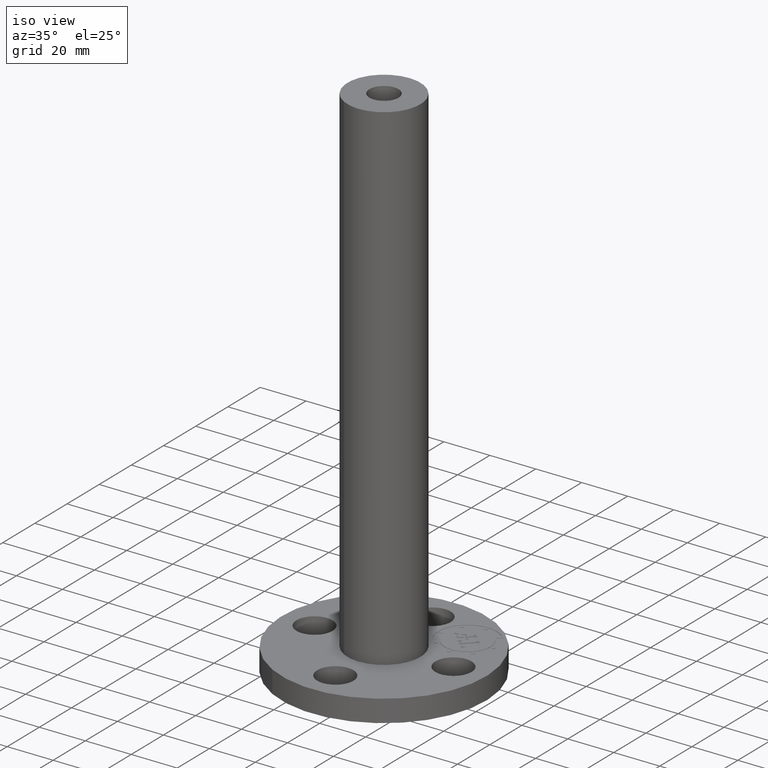
[diagram: clean part render]
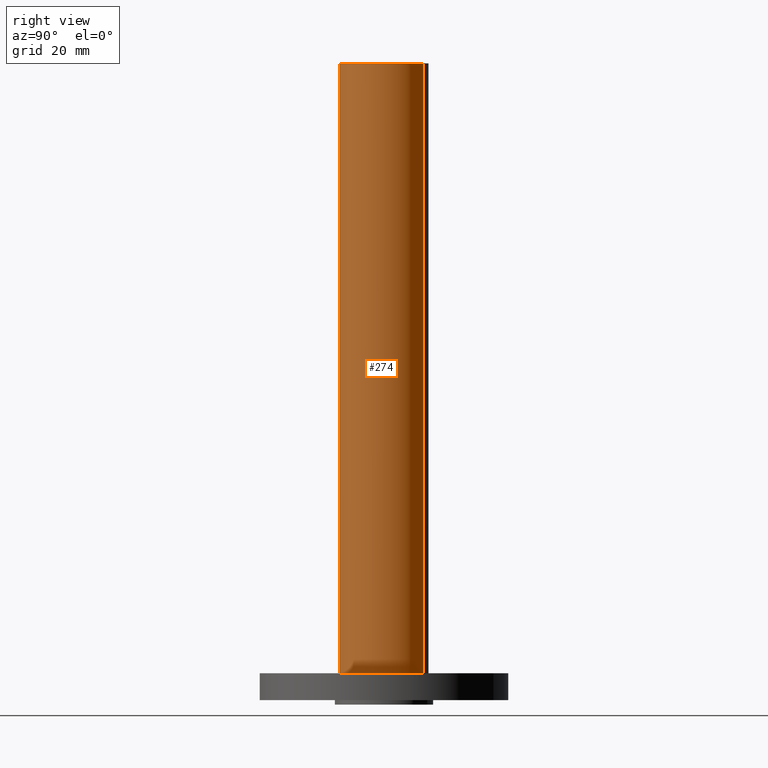
[diagram: tour spotlight — one face highlighted and labeled with its STEP entity id]
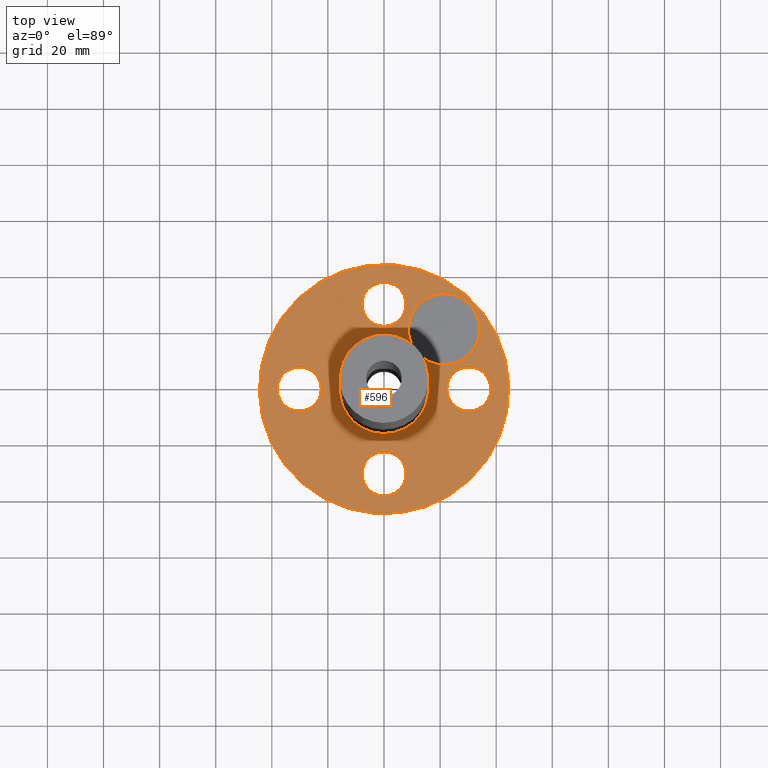
[diagram: tour spotlight — one face highlighted and labeled with its STEP entity id]
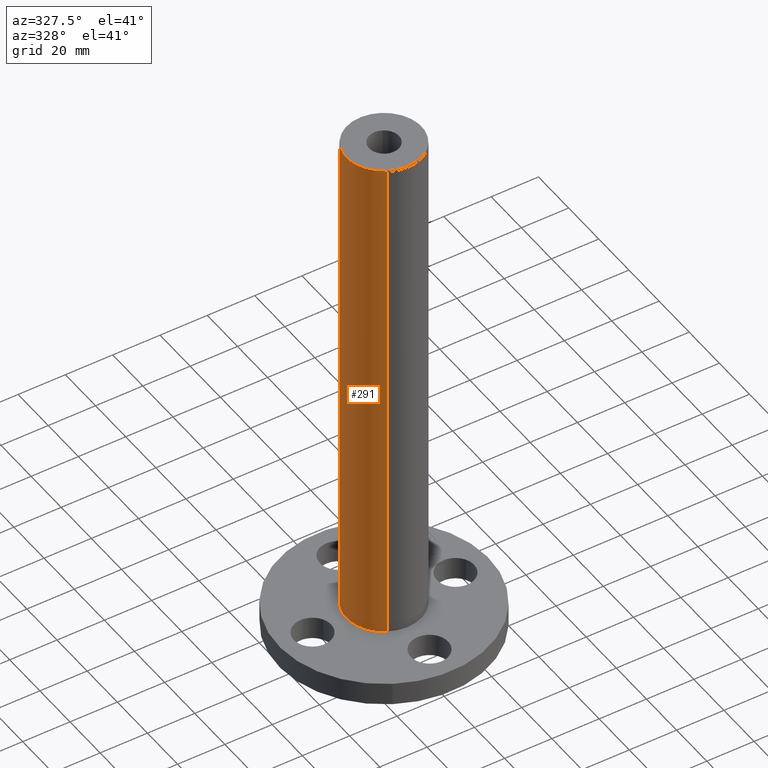
[diagram: tour spotlight — one face highlighted and labeled with its STEP entity id]
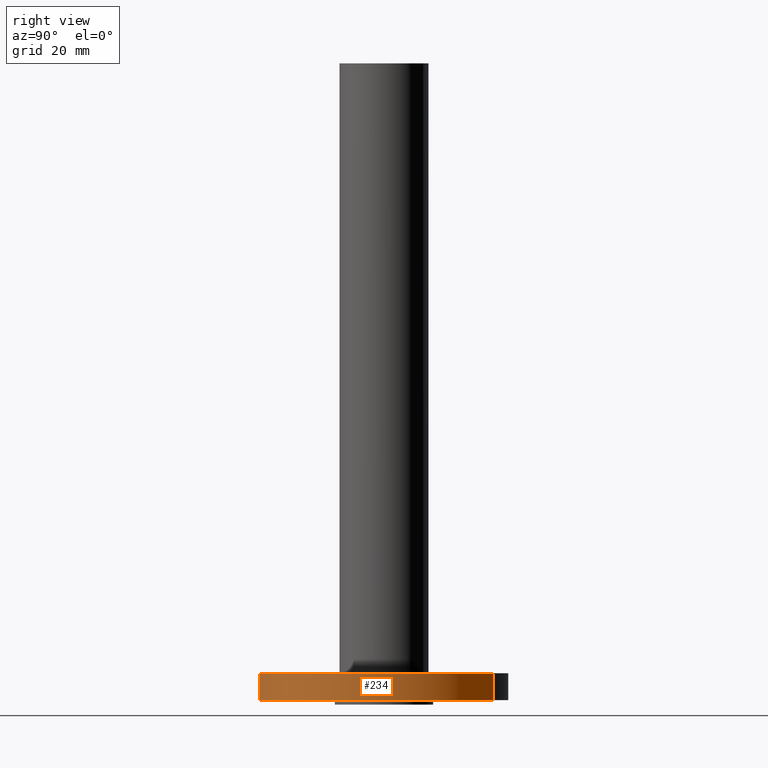
[diagram: tour spotlight — one face highlighted and labeled with its STEP entity id]
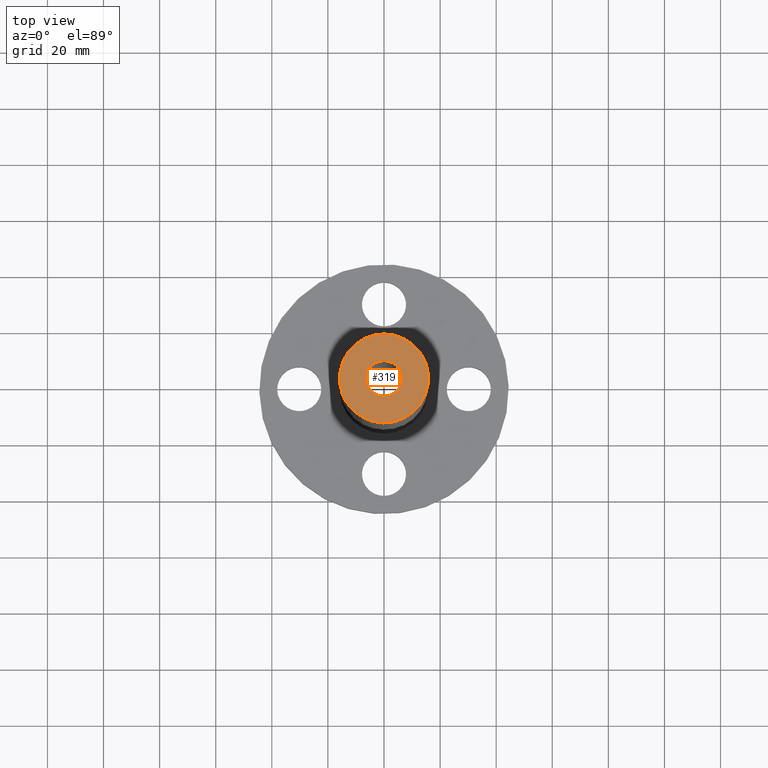
[diagram: tour spotlight — one face highlighted and labeled with its STEP entity id]
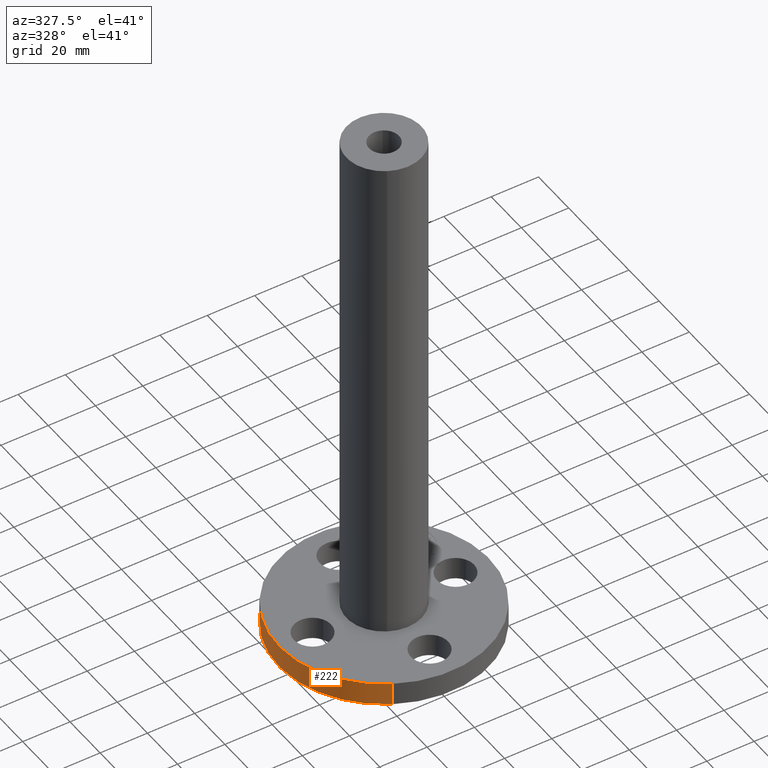
[diagram: tour spotlight — one face highlighted and labeled with its STEP entity id]
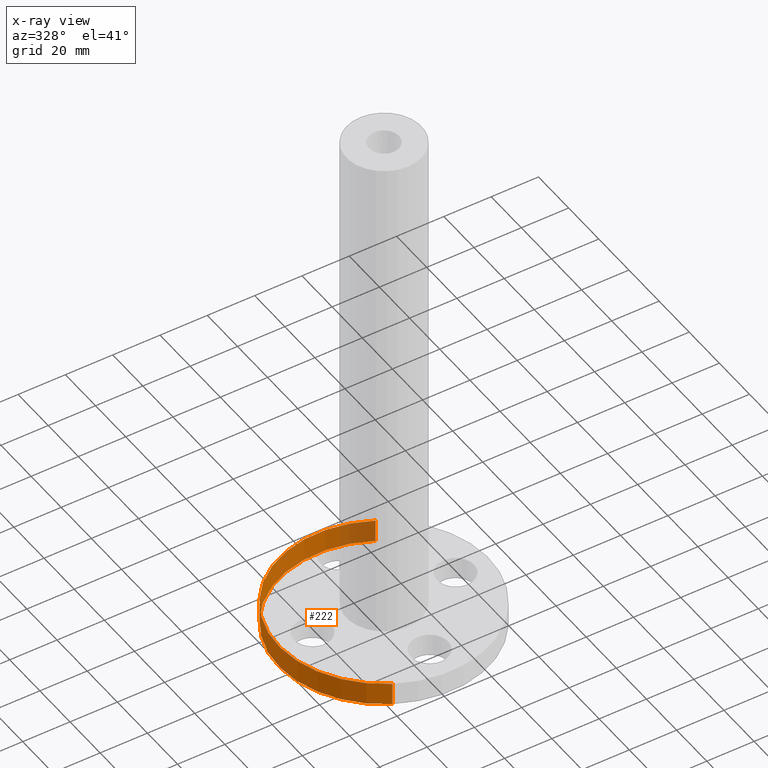
[diagram: x-ray of the same camera — body ghosted, this tour face saturated]
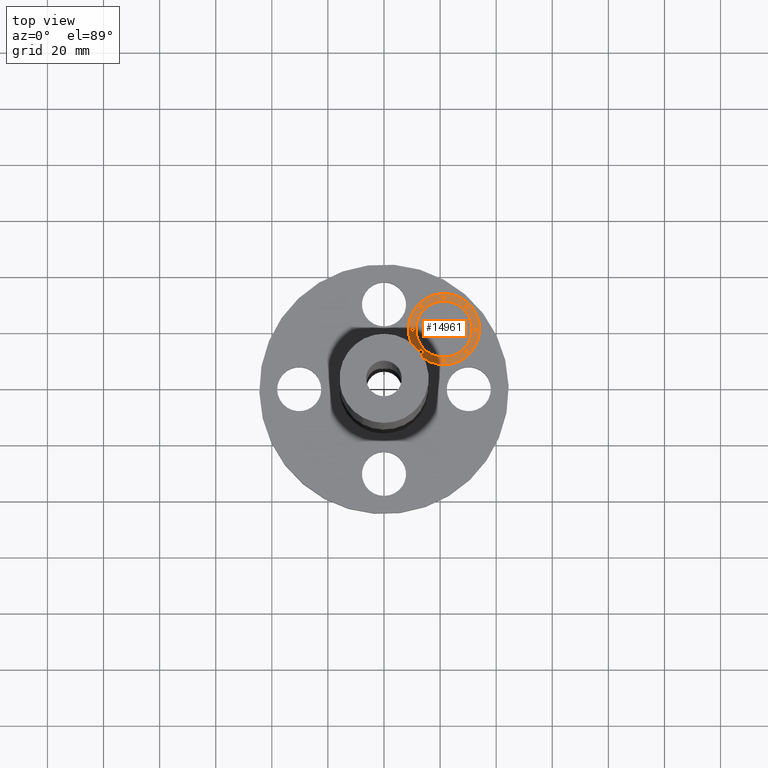
[diagram: tour spotlight — one face highlighted and labeled with its STEP entity id]
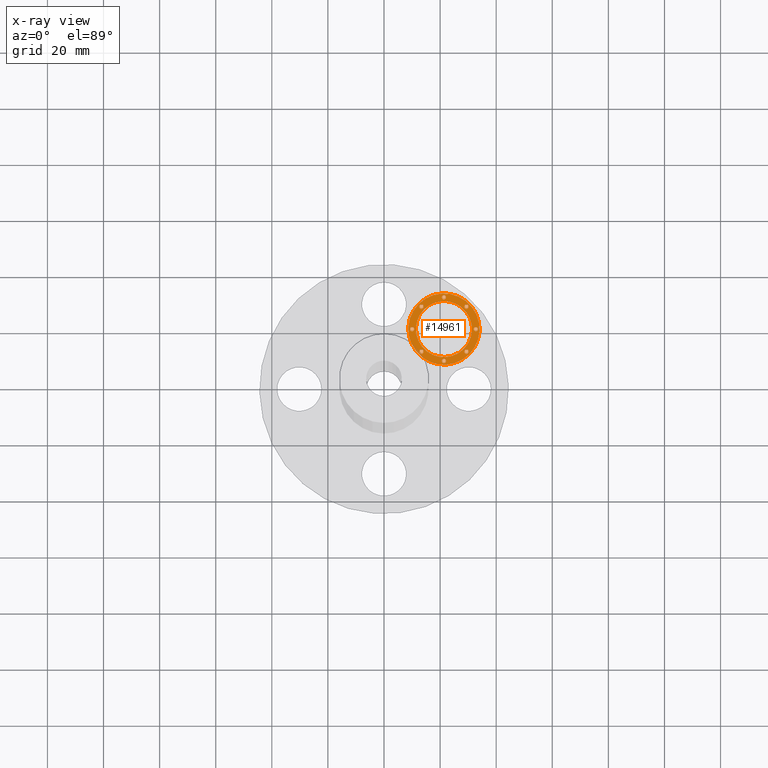
[diagram: x-ray of the same camera — body ghosted, this tour face saturated]
A machine part: a face-by-face anatomy tour. The part has 405 B-rep faces; the first image is the clean iso view, then the 7 largest visible faces are spotlighted one at a time (largest first), each with its STEP entity span.

Face 1 — right view, entity #274. In plain terms, the highlighted cylindrical surface (partial cylindrical patch) has radius 15.875 mm, axis along (0, 0, -1).
Definition (entity closure, byte-faithful):
#238=AXIS2_PLACEMENT_3D('Cylinder Axis2P3D',#235,#236,#237) ;
#242=AXIS2_PLACEMENT_3D('Circle Axis2P3D',#240,#241,$) ;
#258=AXIS2_PLACEMENT_3D('Circle Axis2P3D',#256,#257,$) ;
#235=CARTESIAN_POINT('Axis2P3D Location',(0.,0.,4.43750000002)) ;
#240=CARTESIAN_POINT('Axis2P3D Location',(0.,0.,0.377500000002)) ;
#244=CARTESIAN_POINT('Vertex',(0.299640961629,0.548489101184,0.377500000002)) ;
#246=CARTESIAN_POINT('Vertex',(-0.299640961629,-0.548489101184,0.377500000002)) ;
#249=CARTESIAN_POINT('Line Origine',(0.299640961629,0.548489101184,4.65750000002)) ;
#253=CARTESIAN_POINT('Vertex',(0.299640961629,0.548489101184,8.93750000004)) ;
#256=CARTESIAN_POINT('Axis2P3D Location',(0.,0.,8.93750000004)) ;
#260=CARTESIAN_POINT('Vertex',(-0.299640961629,-0.548489101184,8.93750000004)) ;
#263=CARTESIAN_POINT('Line Origine',(-0.299640961629,-0.548489101184,4.65750000002)) ;
#236=DIRECTION('Axis2P3D Direction',(0.,0.,-0.0393700787402)) ;
#237=DIRECTION('Axis2P3D XDirection',(-0.0188750212049,-0.0345504945626,0.)) ;
#241=DIRECTION('Axis2P3D Direction',(0.,0.,-0.0393700787402)) ;
#250=DIRECTION('Vector Direction',(0.,0.,-0.0393700787402)) ;
#257=DIRECTION('Axis2P3D Direction',(0.,0.,-0.0393700787402)) ;
#264=DIRECTION('Vector Direction',(0.,0.,-0.0393700787402)) ;
#251=VECTOR('Line Direction',#250,0.0393700787402) ;
#265=VECTOR('Line Direction',#264,0.0393700787402) ;
#269=ORIENTED_EDGE('',*,*,#248,.F.) ;
#270=ORIENTED_EDGE('',*,*,#255,.T.) ;
#271=ORIENTED_EDGE('',*,*,#262,.T.) ;
#272=ORIENTED_EDGE('',*,*,#267,.F.) ;
#274=ADVANCED_FACE('PartBody',(#273),#239,.T.) ;
#243=CIRCLE('generated circle',#242,0.625000000003) ;
#259=CIRCLE('generated circle',#258,0.625000000003) ;
#239=CYLINDRICAL_SURFACE('generated cylinder',#238,0.625000000003) ;
#248=EDGE_CURVE('',#245,#247,#243,.T.) ;
#255=EDGE_CURVE('',#245,#254,#252,.F.) ;
#262=EDGE_CURVE('',#254,#261,#259,.T.) ;
#267=EDGE_CURVE('',#247,#261,#266,.F.) ;
#268=EDGE_LOOP('',(#269,#270,#271,#272)) ;
#273=FACE_OUTER_BOUND('',#268,.T.) ;
#252=LINE('Line',#249,#251) ;
#266=LINE('Line',#263,#265) ;
#245=VERTEX_POINT('',#244) ;
#247=VERTEX_POINT('',#246) ;
#254=VERTEX_POINT('',#253) ;
#261=VERTEX_POINT('',#260) ;

Face 2 — top view, entity #596. In plain terms, the highlighted planar face has unit normal (0, 0, -1).
Definition (entity closure, byte-faithful):
#51=AXIS2_PLACEMENT_3D('Circle Axis2P3D',#49,#50,$) ;
#182=AXIS2_PLACEMENT_3D('Circle Axis2P3D',#180,#181,$) ;
#206=AXIS2_PLACEMENT_3D('Circle Axis2P3D',#204,#205,$) ;
#225=AXIS2_PLACEMENT_3D('Circle Axis2P3D',#223,#224,$) ;
#242=AXIS2_PLACEMENT_3D('Circle Axis2P3D',#240,#241,$) ;
#277=AXIS2_PLACEMENT_3D('Circle Axis2P3D',#275,#276,$) ;
#434=AXIS2_PLACEMENT_3D('Circle Axis2P3D',#432,#433,$) ;
#453=AXIS2_PLACEMENT_3D('Circle Axis2P3D',#451,#452,$) ;
#477=AXIS2_PLACEMENT_3D('Circle Axis2P3D',#475,#476,$) ;
#496=AXIS2_PLACEMENT_3D('Circle Axis2P3D',#494,#495,$) ;
#520=AXIS2_PLACEMENT_3D('Circle Axis2P3D',#518,#519,$) ;
#539=AXIS2_PLACEMENT_3D('Circle Axis2P3D',#537,#538,$) ;
#552=AXIS2_PLACEMENT_3D('Plane Axis2P3D',#549,#550,#551) ;
#580=AXIS2_PLACEMENT_3D('Circle Axis2P3D',#578,#579,$) ;
#589=AXIS2_PLACEMENT_3D('Circle Axis2P3D',#587,#588,$) ;
#44=CARTESIAN_POINT('Vertex',(0.917949405818,-0.148621916968,0.377500000002)) ;
#49=CARTESIAN_POINT('Axis2P3D Location',(1.19,0.,0.377500000002)) ;
#53=CARTESIAN_POINT('Vertex',(1.46205059419,0.148621916968,0.377500000002)) ;
#180=CARTESIAN_POINT('Axis2P3D Location',(1.19,0.,0.377500000002)) ;
#201=CARTESIAN_POINT('Vertex',(-0.838994692561,-1.53576948331,0.377500000002)) ;
#204=CARTESIAN_POINT('Axis2P3D Location',(0.,0.,0.377500000002)) ;
#208=CARTESIAN_POINT('Vertex',(0.838994692561,1.53576948331,0.377500000002)) ;
#223=CARTESIAN_POINT('Axis2P3D Location',(0.,0.,0.377500000002)) ;
#240=CARTESIAN_POINT('Axis2P3D Location',(0.,0.,0.377500000002)) ;
#244=CARTESIAN_POINT('Vertex',(0.299640961629,0.548489101184,0.377500000002)) ;
#246=CARTESIAN_POINT('Vertex',(-0.299640961629,-0.548489101184,0.377500000002)) ;
#275=CARTESIAN_POINT('Axis2P3D Location',(0.,0.,0.377500000002)) ;
#429=CARTESIAN_POINT('Vertex',(-0.148621916968,-0.917949405818,0.377500000002)) ;
#432=CARTESIAN_POINT('Axis2P3D Location',(-5.14959780367E-017,-1.19,0.377500000002)) ;
#436=CARTESIAN_POINT('Vertex',(0.148621916968,-1.46205059419,0.377500000002)) ;
#451=CARTESIAN_POINT('Axis2P3D Location',(-5.14959780367E-017,-1.19,0.377500000002)) ;
#472=CARTESIAN_POINT('Vertex',(-0.917949405818,0.148621916968,0.377500000002)) ;
#475=CARTESIAN_POINT('Axis2P3D Location',(-1.19,3.82733190625E-016,0.377500000002)) ;
#479=CARTESIAN_POINT('Vertex',(-1.46205059419,-0.148621916968,0.377500000002)) ;
#494=CARTESIAN_POINT('Axis2P3D Location',(-1.19,3.82733190625E-016,0.377500000002)) ;
#515=CARTESIAN_POINT('Vertex',(0.148621916968,0.917949405818,0.377500000002)) ;
#518=CARTESIAN_POINT('Axis2P3D Location',(8.38332865799E-016,1.19,0.377500000002)) ;
#522=CARTESIAN_POINT('Vertex',(-0.148621916968,1.46205059419,0.377500000002)) ;
#537=CARTESIAN_POINT('Axis2P3D Location',(8.38332865799E-016,1.19,0.377500000002)) ;
#549=CARTESIAN_POINT('Axis2P3D Location',(0.,1.75000000001,0.377500000002)) ;
#578=CARTESIAN_POINT('Axis2P3D Location',(0.841457069615,0.841457069615,0.377500000002)) ;
#582=CARTESIAN_POINT('Vertex',(1.19501045667,0.487903682556,0.377500000002)) ;
#584=CARTESIAN_POINT('Vertex',(0.487903682556,1.19501045667,0.377500000002)) ;
#587=CARTESIAN_POINT('Axis2P3D Location',(0.841457069615,0.841457069615,0.377500000002)) ;
#50=DIRECTION('Axis2P3D Direction',(0.,-0.,0.0393700787402)) ;
#181=DIRECTION('Axis2P3D Direction',(0.,-0.,0.0393700787402)) ;
#205=DIRECTION('Axis2P3D Direction',(0.,0.,-0.0393700787402)) ;
#224=DIRECTION('Axis2P3D Direction',(0.,0.,-0.0393700787402)) ;
#241=DIRECTION('Axis2P3D Direction',(0.,0.,-0.0393700787402)) ;
#276=DIRECTION('Axis2P3D Direction',(0.,0.,-0.0393700787402)) ;
#433=DIRECTION('Axis2P3D Direction',(0.,0.,0.0393700787402)) ;
#452=DIRECTION('Axis2P3D Direction',(0.,0.,0.0393700787402)) ;
#476=DIRECTION('Axis2P3D Direction',(0.,0.,0.0393700787402)) ;
#495=DIRECTION('Axis2P3D Direction',(0.,0.,0.0393700787402)) ;
#519=DIRECTION('Axis2P3D Direction',(0.,-0.,0.0393700787402)) ;
#538=DIRECTION('Axis2P3D Direction',(0.,-0.,0.0393700787402)) ;
#550=DIRECTION('Axis2P3D Direction',(0.,0.,-0.0393700787402)) ;
#551=DIRECTION('Axis2P3D XDirection',(0.0393700787402,0.,0.)) ;
#579=DIRECTION('Axis2P3D Direction',(0.,0.,-0.0393700787402)) ;
#588=DIRECTION('Axis2P3D Direction',(0.,0.,-0.0393700787402)) ;
#555=ORIENTED_EDGE('',*,*,#227,.F.) ;
#556=ORIENTED_EDGE('',*,*,#210,.F.) ;
#559=ORIENTED_EDGE('',*,*,#55,.T.) ;
#560=ORIENTED_EDGE('',*,*,#184,.T.) ;
#563=ORIENTED_EDGE('',*,*,#279,.T.) ;
#564=ORIENTED_EDGE('',*,*,#248,.T.) ;
#567=ORIENTED_EDGE('',*,*,#455,.T.) ;
#568=ORIENTED_EDGE('',*,*,#438,.T.) ;
#571=ORIENTED_EDGE('',*,*,#498,.T.) ;
#572=ORIENTED_EDGE('',*,*,#481,.T.) ;
#575=ORIENTED_EDGE('',*,*,#541,.T.) ;
#576=ORIENTED_EDGE('',*,*,#524,.T.) ;
#593=ORIENTED_EDGE('',*,*,#586,.F.) ;
#594=ORIENTED_EDGE('',*,*,#591,.F.) ;
#561=FACE_BOUND('',#558,.T.) ;
#565=FACE_BOUND('',#562,.T.) ;
#569=FACE_BOUND('',#566,.T.) ;
#573=FACE_BOUND('',#570,.T.) ;
#577=FACE_BOUND('',#574,.T.) ;
#595=FACE_BOUND('',#592,.T.) ;
#596=ADVANCED_FACE('PartBody',(#557,#561,#565,#569,#573,#577,#595),#553,.F.) ;
#52=CIRCLE('generated circle',#51,0.310000000001) ;
#183=CIRCLE('generated circle',#182,0.310000000001) ;
#207=CIRCLE('generated circle',#206,1.75000000001) ;
#226=CIRCLE('generated circle',#225,1.75000000001) ;
#243=CIRCLE('generated circle',#242,0.625000000003) ;
#278=CIRCLE('generated circle',#277,0.625000000003) ;
#435=CIRCLE('generated circle',#434,0.310000000001) ;
#454=CIRCLE('generated circle',#453,0.310000000001) ;
#478=CIRCLE('generated circle',#477,0.310000000001) ;
#497=CIRCLE('generated circle',#496,0.310000000001) ;
#521=CIRCLE('generated circle',#520,0.310000000001) ;
#540=CIRCLE('generated circle',#539,0.310000000001) ;
#581=CIRCLE('generated circle',#580,0.499999995002) ;
#590=CIRCLE('generated circle',#589,0.499999995002) ;
#55=EDGE_CURVE('',#54,#45,#52,.F.) ;
#184=EDGE_CURVE('',#45,#54,#183,.F.) ;
#210=EDGE_CURVE('',#202,#209,#207,.T.) ;
#227=EDGE_CURVE('',#209,#202,#226,.T.) ;
#248=EDGE_CURVE('',#245,#247,#243,.T.) ;
#279=EDGE_CURVE('',#247,#245,#278,.T.) ;
#438=EDGE_CURVE('',#437,#430,#435,.F.) ;
#455=EDGE_CURVE('',#430,#437,#454,.F.) ;
#481=EDGE_CURVE('',#480,#473,#478,.F.) ;
#498=EDGE_CURVE('',#473,#480,#497,.F.) ;
#524=EDGE_CURVE('',#523,#516,#521,.F.) ;
#541=EDGE_CURVE('',#516,#523,#540,.F.) ;
#586=EDGE_CURVE('',#583,#585,#581,.F.) ;
#591=EDGE_CURVE('',#585,#583,#590,.F.) ;
#554=EDGE_LOOP('',(#555,#556)) ;
#558=EDGE_LOOP('',(#559,#560)) ;
#562=EDGE_LOOP('',(#563,#564)) ;
#566=EDGE_LOOP('',(#567,#568)) ;
#570=EDGE_LOOP('',(#571,#572)) ;
#574=EDGE_LOOP('',(#575,#576)) ;
#592=EDGE_LOOP('',(#593,#594)) ;
#557=FACE_OUTER_BOUND('',#554,.T.) ;
#553=PLANE('',#552) ;
#45=VERTEX_POINT('',#44) ;
#54=VERTEX_POINT('',#53) ;
#202=VERTEX_POINT('',#201) ;
#209=VERTEX_POINT('',#208) ;
#245=VERTEX_POINT('',#244) ;
#247=VERTEX_POINT('',#246) ;
#430=VERTEX_POINT('',#429) ;
#437=VERTEX_POINT('',#436) ;
#473=VERTEX_POINT('',#472) ;
#480=VERTEX_POINT('',#479) ;
#516=VERTEX_POINT('',#515) ;
#523=VERTEX_POINT('',#522) ;
#583=VERTEX_POINT('',#582) ;
#585=VERTEX_POINT('',#584) ;

Face 3 — auxiliary view, entity #291. In plain terms, the highlighted cylindrical surface (partial cylindrical patch) has radius 15.875 mm, axis along (0, 0, -1).
Definition (entity closure, byte-faithful):
#238=AXIS2_PLACEMENT_3D('Cylinder Axis2P3D',#235,#236,#237) ;
#277=AXIS2_PLACEMENT_3D('Circle Axis2P3D',#275,#276,$) ;
#282=AXIS2_PLACEMENT_3D('Circle Axis2P3D',#280,#281,$) ;
#235=CARTESIAN_POINT('Axis2P3D Location',(0.,0.,4.43750000002)) ;
#244=CARTESIAN_POINT('Vertex',(0.299640961629,0.548489101184,0.377500000002)) ;
#246=CARTESIAN_POINT('Vertex',(-0.299640961629,-0.548489101184,0.377500000002)) ;
#249=CARTESIAN_POINT('Line Origine',(0.299640961629,0.548489101184,4.65750000002)) ;
#253=CARTESIAN_POINT('Vertex',(0.299640961629,0.548489101184,8.93750000004)) ;
#260=CARTESIAN_POINT('Vertex',(-0.299640961629,-0.548489101184,8.93750000004)) ;
#263=CARTESIAN_POINT('Line Origine',(-0.299640961629,-0.548489101184,4.65750000002)) ;
#275=CARTESIAN_POINT('Axis2P3D Location',(0.,0.,0.377500000002)) ;
#280=CARTESIAN_POINT('Axis2P3D Location',(0.,0.,8.93750000004)) ;
#236=DIRECTION('Axis2P3D Direction',(0.,0.,-0.0393700787402)) ;
#237=DIRECTION('Axis2P3D XDirection',(-0.0188750212049,-0.0345504945626,0.)) ;
#250=DIRECTION('Vector Direction',(0.,0.,-0.0393700787402)) ;
#264=DIRECTION('Vector Direction',(0.,0.,-0.0393700787402)) ;
#276=DIRECTION('Axis2P3D Direction',(0.,0.,-0.0393700787402)) ;
#281=DIRECTION('Axis2P3D Direction',(0.,0.,-0.0393700787402)) ;
#251=VECTOR('Line Direction',#250,0.0393700787402) ;
#265=VECTOR('Line Direction',#264,0.0393700787402) ;
#286=ORIENTED_EDGE('',*,*,#279,.F.) ;
#287=ORIENTED_EDGE('',*,*,#267,.T.) ;
#288=ORIENTED_EDGE('',*,*,#284,.T.) ;
#289=ORIENTED_EDGE('',*,*,#255,.F.) ;
#291=ADVANCED_FACE('PartBody',(#290),#239,.T.) ;
#278=CIRCLE('generated circle',#277,0.625000000003) ;
#283=CIRCLE('generated circle',#282,0.625000000003) ;
#239=CYLINDRICAL_SURFACE('generated cylinder',#238,0.625000000003) ;
#255=EDGE_CURVE('',#245,#254,#252,.F.) ;
#267=EDGE_CURVE('',#247,#261,#266,.F.) ;
#279=EDGE_CURVE('',#247,#245,#278,.T.) ;
#284=EDGE_CURVE('',#261,#254,#283,.T.) ;
#285=EDGE_LOOP('',(#286,#287,#288,#289)) ;
#290=FACE_OUTER_BOUND('',#285,.T.) ;
#252=LINE('Line',#249,#251) ;
#266=LINE('Line',#263,#265) ;
#245=VERTEX_POINT('',#244) ;
#247=VERTEX_POINT('',#246) ;
#254=VERTEX_POINT('',#253) ;
#261=VERTEX_POINT('',#260) ;

Face 4 — right view, entity #234. In plain terms, the highlighted cylindrical surface (partial cylindrical patch) has radius 44.45 mm, axis along (0, 0, -1).
Definition (entity closure, byte-faithful):
#91=AXIS2_PLACEMENT_3D('Circle Axis2P3D',#89,#90,$) ;
#195=AXIS2_PLACEMENT_3D('Cylinder Axis2P3D',#192,#193,#194) ;
#225=AXIS2_PLACEMENT_3D('Circle Axis2P3D',#223,#224,$) ;
#84=CARTESIAN_POINT('Vertex',(-0.838994692561,-1.53576948331,0.)) ;
#86=CARTESIAN_POINT('Vertex',(0.838994692561,1.53576948331,0.)) ;
#89=CARTESIAN_POINT('Axis2P3D Location',(0.,0.,0.)) ;
#192=CARTESIAN_POINT('Axis2P3D Location',(0.,0.,4.43750000002)) ;
#197=CARTESIAN_POINT('Line Origine',(-0.838994692561,-1.53576948331,0.188750000001)) ;
#201=CARTESIAN_POINT('Vertex',(-0.838994692561,-1.53576948331,0.377500000002)) ;
#208=CARTESIAN_POINT('Vertex',(0.838994692561,1.53576948331,0.377500000002)) ;
#211=CARTESIAN_POINT('Line Origine',(0.838994692561,1.53576948331,0.188750000001)) ;
#223=CARTESIAN_POINT('Axis2P3D Location',(0.,0.,0.377500000002)) ;
#90=DIRECTION('Axis2P3D Direction',(0.,0.,-0.0393700787402)) ;
#193=DIRECTION('Axis2P3D Direction',(0.,0.,-0.0393700787402)) ;
#194=DIRECTION('Axis2P3D XDirection',(0.0188750212049,0.0345504945626,0.)) ;
#198=DIRECTION('Vector Direction',(0.,0.,-0.0393700787402)) ;
#212=DIRECTION('Vector Direction',(0.,0.,-0.0393700787402)) ;
#224=DIRECTION('Axis2P3D Direction',(0.,0.,-0.0393700787402)) ;
#199=VECTOR('Line Direction',#198,0.0393700787402) ;
#213=VECTOR('Line Direction',#212,0.0393700787402) ;
#229=ORIENTED_EDGE('',*,*,#93,.F.) ;
#230=ORIENTED_EDGE('',*,*,#215,.T.) ;
#231=ORIENTED_EDGE('',*,*,#227,.T.) ;
#232=ORIENTED_EDGE('',*,*,#203,.F.) ;
#234=ADVANCED_FACE('PartBody',(#233),#196,.T.) ;
#92=CIRCLE('generated circle',#91,1.75000000001) ;
#226=CIRCLE('generated circle',#225,1.75000000001) ;
#196=CYLINDRICAL_SURFACE('generated cylinder',#195,1.75000000001) ;
#93=EDGE_CURVE('',#87,#85,#92,.T.) ;
#203=EDGE_CURVE('',#85,#202,#200,.F.) ;
#215=EDGE_CURVE('',#87,#209,#214,.F.) ;
#227=EDGE_CURVE('',#209,#202,#226,.T.) ;
#228=EDGE_LOOP('',(#229,#230,#231,#232)) ;
#233=FACE_OUTER_BOUND('',#228,.T.) ;
#200=LINE('Line',#197,#199) ;
#214=LINE('Line',#211,#213) ;
#85=VERTEX_POINT('',#84) ;
#87=VERTEX_POINT('',#86) ;
#202=VERTEX_POINT('',#201) ;
#209=VERTEX_POINT('',#208) ;

Face 5 — top view, entity #319. In plain terms, the highlighted planar face has unit normal (0, 0, -1).
Definition (entity closure, byte-faithful):
#258=AXIS2_PLACEMENT_3D('Circle Axis2P3D',#256,#257,$) ;
#282=AXIS2_PLACEMENT_3D('Circle Axis2P3D',#280,#281,$) ;
#295=AXIS2_PLACEMENT_3D('Plane Axis2P3D',#292,#293,#294) ;
#303=AXIS2_PLACEMENT_3D('Circle Axis2P3D',#301,#302,$) ;
#312=AXIS2_PLACEMENT_3D('Circle Axis2P3D',#310,#311,$) ;
#253=CARTESIAN_POINT('Vertex',(0.299640961629,0.548489101184,8.93750000004)) ;
#256=CARTESIAN_POINT('Axis2P3D Location',(0.,0.,8.93750000004)) ;
#260=CARTESIAN_POINT('Vertex',(-0.299640961629,-0.548489101184,8.93750000004)) ;
#280=CARTESIAN_POINT('Axis2P3D Location',(0.,0.,8.93750000004)) ;
#292=CARTESIAN_POINT('Axis2P3D Location',(0.,0.625000000003,8.93750000004)) ;
#301=CARTESIAN_POINT('Axis2P3D Location',(0.,0.,8.93750000004)) ;
#305=CARTESIAN_POINT('Vertex',(-0.119856384652,-0.219395640473,8.93750000004)) ;
#307=CARTESIAN_POINT('Vertex',(0.119856384652,0.219395640473,8.93750000004)) ;
#310=CARTESIAN_POINT('Axis2P3D Location',(0.,0.,8.93750000004)) ;
#257=DIRECTION('Axis2P3D Direction',(0.,0.,-0.0393700787402)) ;
#281=DIRECTION('Axis2P3D Direction',(0.,0.,-0.0393700787402)) ;
#293=DIRECTION('Axis2P3D Direction',(0.,0.,-0.0393700787402)) ;
#294=DIRECTION('Axis2P3D XDirection',(0.0393700787402,0.,0.)) ;
#302=DIRECTION('Axis2P3D Direction',(0.,0.,-0.0393700787402)) ;
#311=DIRECTION('Axis2P3D Direction',(0.,0.,-0.0393700787402)) ;
#298=ORIENTED_EDGE('',*,*,#262,.F.) ;
#299=ORIENTED_EDGE('',*,*,#284,.F.) ;
#316=ORIENTED_EDGE('',*,*,#309,.T.) ;
#317=ORIENTED_EDGE('',*,*,#314,.T.) ;
#318=FACE_BOUND('',#315,.T.) ;
#319=ADVANCED_FACE('PartBody',(#300,#318),#296,.F.) ;
#259=CIRCLE('generated circle',#258,0.625000000003) ;
#283=CIRCLE('generated circle',#282,0.625000000003) ;
#304=CIRCLE('generated circle',#303,0.250000000001) ;
#313=CIRCLE('generated circle',#312,0.250000000001) ;
#262=EDGE_CURVE('',#254,#261,#259,.T.) ;
#284=EDGE_CURVE('',#261,#254,#283,.T.) ;
#309=EDGE_CURVE('',#306,#308,#304,.T.) ;
#314=EDGE_CURVE('',#308,#306,#313,.T.) ;
#297=EDGE_LOOP('',(#298,#299)) ;
#315=EDGE_LOOP('',(#316,#317)) ;
#300=FACE_OUTER_BOUND('',#297,.T.) ;
#296=PLANE('',#295) ;
#254=VERTEX_POINT('',#253) ;
#261=VERTEX_POINT('',#260) ;
#306=VERTEX_POINT('',#305) ;
#308=VERTEX_POINT('',#307) ;

Face 6 — auxiliary view, entity #222. An x-ray twin of the same camera follows (body ghosted, this face saturated) — the face is partly hidden behind the body. In plain terms, the highlighted cylindrical surface (partial cylindrical patch) has radius 44.45 mm, axis along (0, 0, -1).
Definition (entity closure, byte-faithful):
#82=AXIS2_PLACEMENT_3D('Circle Axis2P3D',#80,#81,$) ;
#195=AXIS2_PLACEMENT_3D('Cylinder Axis2P3D',#192,#193,#194) ;
#206=AXIS2_PLACEMENT_3D('Circle Axis2P3D',#204,#205,$) ;
#80=CARTESIAN_POINT('Axis2P3D Location',(0.,0.,0.)) ;
#84=CARTESIAN_POINT('Vertex',(-0.838994692561,-1.53576948331,0.)) ;
#86=CARTESIAN_POINT('Vertex',(0.838994692561,1.53576948331,0.)) ;
#192=CARTESIAN_POINT('Axis2P3D Location',(0.,0.,4.43750000002)) ;
#197=CARTESIAN_POINT('Line Origine',(-0.838994692561,-1.53576948331,0.188750000001)) ;
#201=CARTESIAN_POINT('Vertex',(-0.838994692561,-1.53576948331,0.377500000002)) ;
#204=CARTESIAN_POINT('Axis2P3D Location',(0.,0.,0.377500000002)) ;
#208=CARTESIAN_POINT('Vertex',(0.838994692561,1.53576948331,0.377500000002)) ;
#211=CARTESIAN_POINT('Line Origine',(0.838994692561,1.53576948331,0.188750000001)) ;
#81=DIRECTION('Axis2P3D Direction',(0.,0.,-0.0393700787402)) ;
#193=DIRECTION('Axis2P3D Direction',(0.,0.,-0.0393700787402)) ;
#194=DIRECTION('Axis2P3D XDirection',(0.0188750212049,0.0345504945626,0.)) ;
#198=DIRECTION('Vector Direction',(0.,0.,-0.0393700787402)) ;
#205=DIRECTION('Axis2P3D Direction',(0.,0.,-0.0393700787402)) ;
#212=DIRECTION('Vector Direction',(0.,0.,-0.0393700787402)) ;
#199=VECTOR('Line Direction',#198,0.0393700787402) ;
#213=VECTOR('Line Direction',#212,0.0393700787402) ;
#217=ORIENTED_EDGE('',*,*,#88,.F.) ;
#218=ORIENTED_EDGE('',*,*,#203,.T.) ;
#219=ORIENTED_EDGE('',*,*,#210,.T.) ;
#220=ORIENTED_EDGE('',*,*,#215,.F.) ;
#222=ADVANCED_FACE('PartBody',(#221),#196,.T.) ;
#83=CIRCLE('generated circle',#82,1.75000000001) ;
#207=CIRCLE('generated circle',#206,1.75000000001) ;
#196=CYLINDRICAL_SURFACE('generated cylinder',#195,1.75000000001) ;
#88=EDGE_CURVE('',#85,#87,#83,.T.) ;
#203=EDGE_CURVE('',#85,#202,#200,.F.) ;
#210=EDGE_CURVE('',#202,#209,#207,.T.) ;
#215=EDGE_CURVE('',#87,#209,#214,.F.) ;
#216=EDGE_LOOP('',(#217,#218,#219,#220)) ;
#221=FACE_OUTER_BOUND('',#216,.T.) ;
#200=LINE('Line',#197,#199) ;
#214=LINE('Line',#211,#213) ;
#85=VERTEX_POINT('',#84) ;
#87=VERTEX_POINT('',#86) ;
#202=VERTEX_POINT('',#201) ;
#209=VERTEX_POINT('',#208) ;

Face 7 — top view, entity #14961. An x-ray twin of the same camera follows (body ghosted, this face saturated) — the face is partly hidden behind the body. In plain terms, the highlighted planar face has unit normal (0, 0, 1).
Definition (entity closure, byte-faithful):
#3608=AXIS2_PLACEMENT_3D('Plane Axis2P3D',#3605,#3606,#3607) ;
#14759=AXIS2_PLACEMENT_3D('Circle Axis2P3D',#14757,#14758,$) ;
#14778=AXIS2_PLACEMENT_3D('Circle Axis2P3D',#14776,#14777,$) ;
#14801=AXIS2_PLACEMENT_3D('Circle Axis2P3D',#14799,#14800,$) ;
#14810=AXIS2_PLACEMENT_3D('Circle Axis2P3D',#14808,#14809,$) ;
#14819=AXIS2_PLACEMENT_3D('Circle Axis2P3D',#14817,#14818,$) ;
#14828=AXIS2_PLACEMENT_3D('Circle Axis2P3D',#14826,#14827,$) ;
#14837=AXIS2_PLACEMENT_3D('Circle Axis2P3D',#14835,#14836,$) ;
#14846=AXIS2_PLACEMENT_3D('Circle Axis2P3D',#14844,#14845,$) ;
#14855=AXIS2_PLACEMENT_3D('Circle Axis2P3D',#14853,#14854,$) ;
#14864=AXIS2_PLACEMENT_3D('Circle Axis2P3D',#14862,#14863,$) ;
#14873=AXIS2_PLACEMENT_3D('Circle Axis2P3D',#14871,#14872,$) ;
#14882=AXIS2_PLACEMENT_3D('Circle Axis2P3D',#14880,#14881,$) ;
#14891=AXIS2_PLACEMENT_3D('Circle Axis2P3D',#14889,#14890,$) ;
#14900=AXIS2_PLACEMENT_3D('Circle Axis2P3D',#14898,#14899,$) ;
#14909=AXIS2_PLACEMENT_3D('Circle Axis2P3D',#14907,#14908,$) ;
#14918=AXIS2_PLACEMENT_3D('Circle Axis2P3D',#14916,#14917,$) ;
#14927=AXIS2_PLACEMENT_3D('Circle Axis2P3D',#14925,#14926,$) ;
#14936=AXIS2_PLACEMENT_3D('Circle Axis2P3D',#14934,#14935,$) ;
#14945=AXIS2_PLACEMENT_3D('Circle Axis2P3D',#14943,#14944,$) ;
#14954=AXIS2_PLACEMENT_3D('Circle Axis2P3D',#14952,#14953,$) ;
#3605=CARTESIAN_POINT('Axis2P3D Location',(0.,0.,0.372500000001)) ;
#14747=CARTESIAN_POINT('Vertex',(0.487903682556,1.19501045667,0.372500000001)) ;
#14754=CARTESIAN_POINT('Vertex',(1.19501045667,0.487903682556,0.372500000001)) ;
#14757=CARTESIAN_POINT('Axis2P3D Location',(0.841457069615,0.841457069615,0.372500000001)) ;
#14776=CARTESIAN_POINT('Axis2P3D Location',(0.841457069615,0.841457069615,0.372500000001)) ;
#14799=CARTESIAN_POINT('Axis2P3D Location',(0.841457069615,0.841457069615,0.372500000001)) ;
#14803=CARTESIAN_POINT('Vertex',(1.12001428366,0.562899855569,0.372500000001)) ;
#14805=CARTESIAN_POINT('Vertex',(0.562899855569,1.12001428366,0.372500000001)) ;
#14808=CARTESIAN_POINT('Axis2P3D Location',(0.841457069615,0.841457069615,0.372500000001)) ;
#14817=CARTESIAN_POINT('Axis2P3D Location',(0.525401769062,0.525401769062,0.372500000001)) ;
#14821=CARTESIAN_POINT('Vertex',(0.546829247066,0.503974291059,0.372500000001)) ;
#14823=CARTESIAN_POINT('Vertex',(0.503974291059,0.546829247066,0.372500000001)) ;
#14826=CARTESIAN_POINT('Axis2P3D Location',(0.525401769062,0.525401769062,0.372500000001)) ;
#14835=CARTESIAN_POINT('Axis2P3D Location',(0.525401769062,1.15751237017,0.372500000001)) ;
#14839=CARTESIAN_POINT('Vertex',(0.546829247066,1.13608489216,0.372500000001)) ;
#14841=CARTESIAN_POINT('Vertex',(0.503974291059,1.17893984817,0.372500000001)) ;
#14844=CARTESIAN_POINT('Axis2P3D Location',(0.525401769062,1.15751237017,0.372500000001)) ;
#14853=CARTESIAN_POINT('Axis2P3D Location',(0.394487377114,0.841457069615,0.372500000001)) ;
#14857=CARTESIAN_POINT('Vertex',(0.415914855117,0.820029591612,0.372500000001)) ;
#14859=CARTESIAN_POINT('Vertex',(0.37305989911,0.862884547619,0.372500000001)) ;
#14862=CARTESIAN_POINT('Axis2P3D Location',(0.394487377114,0.841457069615,0.372500000001)) ;
#14871=CARTESIAN_POINT('Axis2P3D Location',(1.15751237017,1.15751237017,0.372500000001)) ;
#14875=CARTESIAN_POINT('Vertex',(1.17893984817,1.13608489216,0.372500000001)) ;
#14877=CARTESIAN_POINT('Vertex',(1.13608489216,1.17893984817,0.372500000001)) ;
#14880=CARTESIAN_POINT('Axis2P3D Location',(1.15751237017,1.15751237017,0.372500000001)) ;
#14889=CARTESIAN_POINT('Axis2P3D Location',(0.841457069615,1.28842676212,0.372500000001)) ;
#14893=CARTESIAN_POINT('Vertex',(0.862884547619,1.26699928411,0.372500000001)) ;
#14895=CARTESIAN_POINT('Vertex',(0.820029591612,1.30985424012,0.372500000001)) ;
#14898=CARTESIAN_POINT('Axis2P3D Location',(0.841457069615,1.28842676212,0.372500000001)) ;
#14907=CARTESIAN_POINT('Axis2P3D Location',(1.15751237017,0.525401769062,0.372500000001)) ;
#14911=CARTESIAN_POINT('Vertex',(1.13608489216,0.546829247066,0.372500000001)) ;
#14913=CARTESIAN_POINT('Vertex',(1.17893984817,0.503974291059,0.372500000001)) ;
#14916=CARTESIAN_POINT('Axis2P3D Location',(1.15751237017,0.525401769062,0.372500000001)) ;
#14925=CARTESIAN_POINT('Axis2P3D Location',(0.841457069615,0.394487377114,0.372500000001)) ;
#14929=CARTESIAN_POINT('Vertex',(0.820029591612,0.415914855117,0.372500000001)) ;
#14931=CARTESIAN_POINT('Vertex',(0.862884547619,0.37305989911,0.372500000001)) ;
#14934=CARTESIAN_POINT('Axis2P3D Location',(0.841457069615,0.394487377114,0.372500000001)) ;
#14943=CARTESIAN_POINT('Axis2P3D Location',(1.28842676212,0.841457069615,0.372500000001)) ;
#14947=CARTESIAN_POINT('Vertex',(1.26699928411,0.862884547619,0.372500000001)) ;
#14949=CARTESIAN_POINT('Vertex',(1.30985424012,0.820029591612,0.372500000001)) ;
#14952=CARTESIAN_POINT('Axis2P3D Location',(1.28842676212,0.841457069615,0.372500000001)) ;
#3606=DIRECTION('Axis2P3D Direction',(0.,0.,0.0393700787402)) ;
#3607=DIRECTION('Axis2P3D XDirection',(0.0393700787402,0.,0.)) ;
#14758=DIRECTION('Axis2P3D Direction',(0.,0.,0.0393700787402)) ;
#14777=DIRECTION('Axis2P3D Direction',(0.,0.,0.0393700787402)) ;
#14800=DIRECTION('Axis2P3D Direction',(0.,0.,0.0393700787402)) ;
#14809=DIRECTION('Axis2P3D Direction',(0.,0.,0.0393700787402)) ;
#14818=DIRECTION('Axis2P3D Direction',(0.,0.,0.0393700787402)) ;
#14827=DIRECTION('Axis2P3D Direction',(0.,0.,0.0393700787402)) ;
#14836=DIRECTION('Axis2P3D Direction',(0.,0.,0.0393700787402)) ;
#14845=DIRECTION('Axis2P3D Direction',(0.,0.,0.0393700787402)) ;
#14854=DIRECTION('Axis2P3D Direction',(0.,0.,0.0393700787402)) ;
#14863=DIRECTION('Axis2P3D Direction',(0.,0.,0.0393700787402)) ;
#14872=DIRECTION('Axis2P3D Direction',(0.,0.,0.0393700787402)) ;
#14881=DIRECTION('Axis2P3D Direction',(0.,0.,0.0393700787402)) ;
#14890=DIRECTION('Axis2P3D Direction',(0.,0.,0.0393700787402)) ;
#14899=DIRECTION('Axis2P3D Direction',(0.,0.,0.0393700787402)) ;
#14908=DIRECTION('Axis2P3D Direction',(0.,0.,0.0393700787402)) ;
#14917=DIRECTION('Axis2P3D Direction',(0.,0.,0.0393700787402)) ;
#14926=DIRECTION('Axis2P3D Direction',(0.,0.,0.0393700787402)) ;
#14935=DIRECTION('Axis2P3D Direction',(0.,0.,0.0393700787402)) ;
#14944=DIRECTION('Axis2P3D Direction',(0.,0.,0.0393700787402)) ;
#14953=DIRECTION('Axis2P3D Direction',(0.,0.,0.0393700787402)) ;
#14796=ORIENTED_EDGE('',*,*,#14761,.T.) ;
#14797=ORIENTED_EDGE('',*,*,#14780,.T.) ;
#14814=ORIENTED_EDGE('',*,*,#14807,.F.) ;
#14815=ORIENTED_EDGE('',*,*,#14812,.F.) ;
#14832=ORIENTED_EDGE('',*,*,#14825,.F.) ;
#14833=ORIENTED_EDGE('',*,*,#14830,.F.) ;
#14850=ORIENTED_EDGE('',*,*,#14843,.F.) ;
#14851=ORIENTED_EDGE('',*,*,#14848,.F.) ;
#14868=ORIENTED_EDGE('',*,*,#14861,.F.) ;
#14869=ORIENTED_EDGE('',*,*,#14866,.F.) ;
#14886=ORIENTED_EDGE('',*,*,#14879,.F.) ;
#14887=ORIENTED_EDGE('',*,*,#14884,.F.) ;
#14904=ORIENTED_EDGE('',*,*,#14897,.F.) ;
#14905=ORIENTED_EDGE('',*,*,#14902,.F.) ;
#14922=ORIENTED_EDGE('',*,*,#14915,.F.) ;
#14923=ORIENTED_EDGE('',*,*,#14920,.F.) ;
#14940=ORIENTED_EDGE('',*,*,#14933,.F.) ;
#14941=ORIENTED_EDGE('',*,*,#14938,.F.) ;
#14958=ORIENTED_EDGE('',*,*,#14951,.F.) ;
#14959=ORIENTED_EDGE('',*,*,#14956,.F.) ;
#14816=FACE_BOUND('',#14813,.T.) ;
#14834=FACE_BOUND('',#14831,.T.) ;
#14852=FACE_BOUND('',#14849,.T.) ;
#14870=FACE_BOUND('',#14867,.T.) ;
#14888=FACE_BOUND('',#14885,.T.) ;
#14906=FACE_BOUND('',#14903,.T.) ;
#14924=FACE_BOUND('',#14921,.T.) ;
#14942=FACE_BOUND('',#14939,.T.) ;
#14960=FACE_BOUND('',#14957,.T.) ;
#14961=ADVANCED_FACE('PartBody',(#14798,#14816,#14834,#14852,#14870,#14888,#14906,#14924,#14942,#14960),#3609,.T.) ;
#14760=CIRCLE('generated circle',#14759,0.499999995002) ;
#14779=CIRCLE('generated circle',#14778,0.499999995002) ;
#14802=CIRCLE('generated circle',#14801,0.393939390002) ;
#14811=CIRCLE('generated circle',#14810,0.393939390002) ;
#14820=CIRCLE('generated circle',#14819,0.0303030300001) ;
#14829=CIRCLE('generated circle',#14828,0.0303030300001) ;
#14838=CIRCLE('generated circle',#14837,0.0303030300001) ;
#14847=CIRCLE('generated circle',#14846,0.0303030300001) ;
#14856=CIRCLE('generated circle',#14855,0.0303030300001) ;
#14865=CIRCLE('generated circle',#14864,0.0303030300001) ;
#14874=CIRCLE('generated circle',#14873,0.0303030300001) ;
#14883=CIRCLE('generated circle',#14882,0.0303030300001) ;
#14892=CIRCLE('generated circle',#14891,0.0303030300001) ;
#14901=CIRCLE('generated circle',#14900,0.0303030300001) ;
#14910=CIRCLE('generated circle',#14909,0.0303030300001) ;
#14919=CIRCLE('generated circle',#14918,0.0303030300001) ;
#14928=CIRCLE('generated circle',#14927,0.0303030300001) ;
#14937=CIRCLE('generated circle',#14936,0.0303030300001) ;
#14946=CIRCLE('generated circle',#14945,0.0303030300001) ;
#14955=CIRCLE('generated circle',#14954,0.0303030300001) ;
#14761=EDGE_CURVE('',#14748,#14755,#14760,.T.) ;
#14780=EDGE_CURVE('',#14755,#14748,#14779,.T.) ;
#14807=EDGE_CURVE('',#14804,#14806,#14802,.T.) ;
#14812=EDGE_CURVE('',#14806,#14804,#14811,.T.) ;
#14825=EDGE_CURVE('',#14822,#14824,#14820,.T.) ;
#14830=EDGE_CURVE('',#14824,#14822,#14829,.T.) ;
#14843=EDGE_CURVE('',#14840,#14842,#14838,.T.) ;
#14848=EDGE_CURVE('',#14842,#14840,#14847,.T.) ;
#14861=EDGE_CURVE('',#14858,#14860,#14856,.T.) ;
#14866=EDGE_CURVE('',#14860,#14858,#14865,.T.) ;
#14879=EDGE_CURVE('',#14876,#14878,#14874,.T.) ;
#14884=EDGE_CURVE('',#14878,#14876,#14883,.T.) ;
#14897=EDGE_CURVE('',#14894,#14896,#14892,.T.) ;
#14902=EDGE_CURVE('',#14896,#14894,#14901,.T.) ;
#14915=EDGE_CURVE('',#14912,#14914,#14910,.T.) ;
#14920=EDGE_CURVE('',#14914,#14912,#14919,.T.) ;
#14933=EDGE_CURVE('',#14930,#14932,#14928,.T.) ;
#14938=EDGE_CURVE('',#14932,#14930,#14937,.T.) ;
#14951=EDGE_CURVE('',#14948,#14950,#14946,.T.) ;
#14956=EDGE_CURVE('',#14950,#14948,#14955,.T.) ;
#14795=EDGE_LOOP('',(#14796,#14797)) ;
#14813=EDGE_LOOP('',(#14814,#14815)) ;
#14831=EDGE_LOOP('',(#14832,#14833)) ;
#14849=EDGE_LOOP('',(#14850,#14851)) ;
#14867=EDGE_LOOP('',(#14868,#14869)) ;
#14885=EDGE_LOOP('',(#14886,#14887)) ;
#14903=EDGE_LOOP('',(#14904,#14905)) ;
#14921=EDGE_LOOP('',(#14922,#14923)) ;
#14939=EDGE_LOOP('',(#14940,#14941)) ;
#14957=EDGE_LOOP('',(#14958,#14959)) ;
#14798=FACE_OUTER_BOUND('',#14795,.T.) ;
#3609=PLANE('',#3608) ;
#14748=VERTEX_POINT('',#14747) ;
#14755=VERTEX_POINT('',#14754) ;
#14804=VERTEX_POINT('',#14803) ;
#14806=VERTEX_POINT('',#14805) ;
#14822=VERTEX_POINT('',#14821) ;
#14824=VERTEX_POINT('',#14823) ;
#14840=VERTEX_POINT('',#14839) ;
#14842=VERTEX_POINT('',#14841) ;
#14858=VERTEX_POINT('',#14857) ;
#14860=VERTEX_POINT('',#14859) ;
#14876=VERTEX_POINT('',#14875) ;
#14878=VERTEX_POINT('',#14877) ;
#14894=VERTEX_POINT('',#14893) ;
#14896=VERTEX_POINT('',#14895) ;
#14912=VERTEX_POINT('',#14911) ;
#14914=VERTEX_POINT('',#14913) ;
#14930=VERTEX_POINT('',#14929) ;
#14932=VERTEX_POINT('',#14931) ;
#14948=VERTEX_POINT('',#14947) ;
#14950=VERTEX_POINT('',#14949) ;